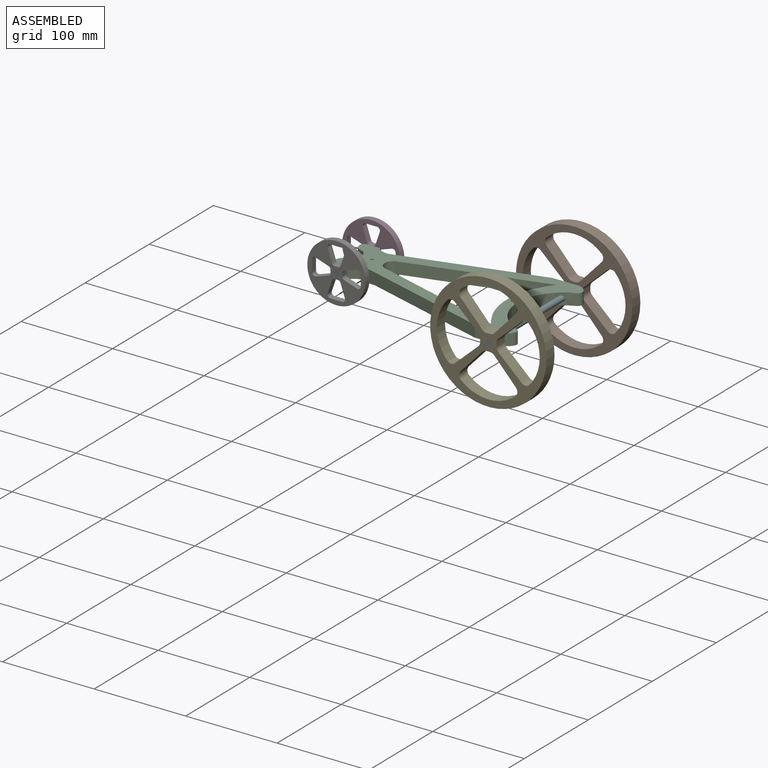
[diagram: assembled view]
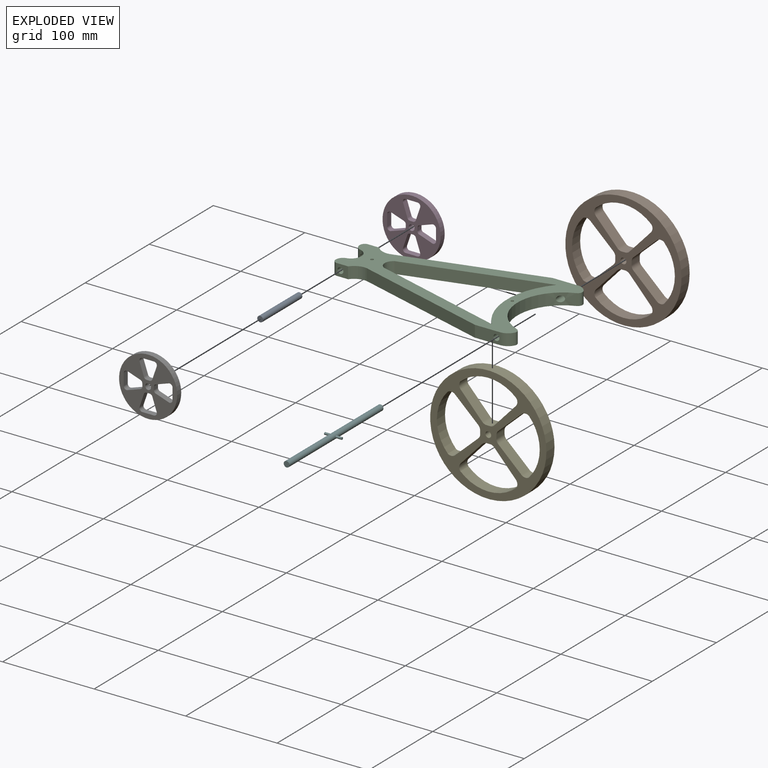
[diagram: exploded view]
GUIDED TOUR — MATED ASSEMBLY (Onshape document 0003901e49d346f2a48e206e, AutoMate assembly 0003901e49d346f2a48e206e_aa6717b7bc48d7c4ba10673a_7dac10a45bcd15223f111ecb_default)

This assembly has 7 components, labeled P0..P6 below (a component is one placed occurrence of a part; the same part can appear more than once), held together by 6 mates. A mate is a constraint between two components; its type names the relative motion it leaves free:
  REVOLUTE — leaves rotation about the listed axis free (a hinge),
  SLIDER — leaves translation along the listed axis free.
Axis/direction vectors are unit vectors and 'through' points are millimeter coordinates, both in the assembly's world frame.

MATES
  1. SLIDER "Slider 1": P3 <-> P2, axis (0.000, -1.000, 0.000) through (-131.30, 20.03, 11.99) mm
  2. REVOLUTE "Revolute 2": P4 <-> P2, axis (0.000, 1.000, 0.000) through (64.64, -64.38, 12.16) mm
  3. REVOLUTE "Revolute 1": P6 <-> P2, axis (0.000, 1.000, 0.000) through (-131.30, -28.05, 11.99) mm
  4. REVOLUTE "Revolute 4": P4 <-> P5, axis (0.000, 1.000, 0.000) through (64.64, -77.08, 12.16) mm
  5. REVOLUTE "Revolute 5": P6 <-> P0, axis (0.000, -1.000, 0.000) through (-131.30, -34.40, 11.99) mm
  6. REVOLUTE "Revolute 3": P1 <-> P2, axis (0.000, -1.000, 0.000) through (64.64, 56.86, 12.16) mm

ASSEMBLY ORDER
  1. P2 — the base component [order verified]
  2. P0 [order verified]
  3. P4 [order verified]
  4. P5 [order verified]
  5. P1 [order verified]
  6. P3 [order verified]
  7. P6 [order verified]
Order-tag legend:
  [order verified] — this step's position reverses a verified removal order: the component was checked to insert without passing through the ones already placed.

Of the 7 components, 2 carry the full construction recipe — the FeatureScript program that regenerates the part's solid from scratch; the rest are supplied as boundary geometry only.
Each toured component is shown spotlighted twice — in the assembled view, then in the exploded view, where a leader line traces a displaced component back to its assembled socket (saturated green if recipe-attached, orange if geometry-only; every other component desaturated gray) — followed by its recipe or geometry summary and the mates that hold it.
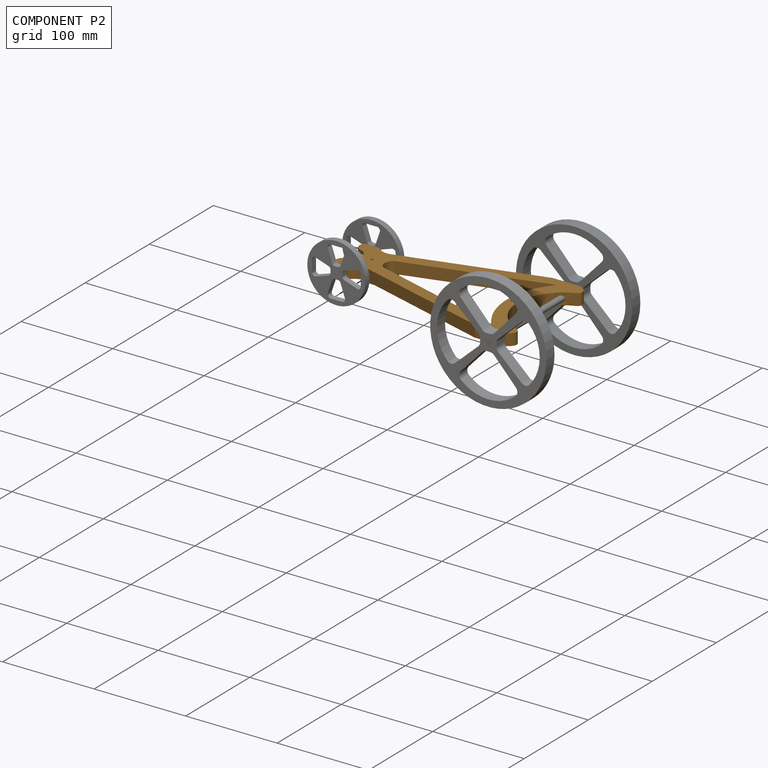
[diagram: component P2 — assembled]
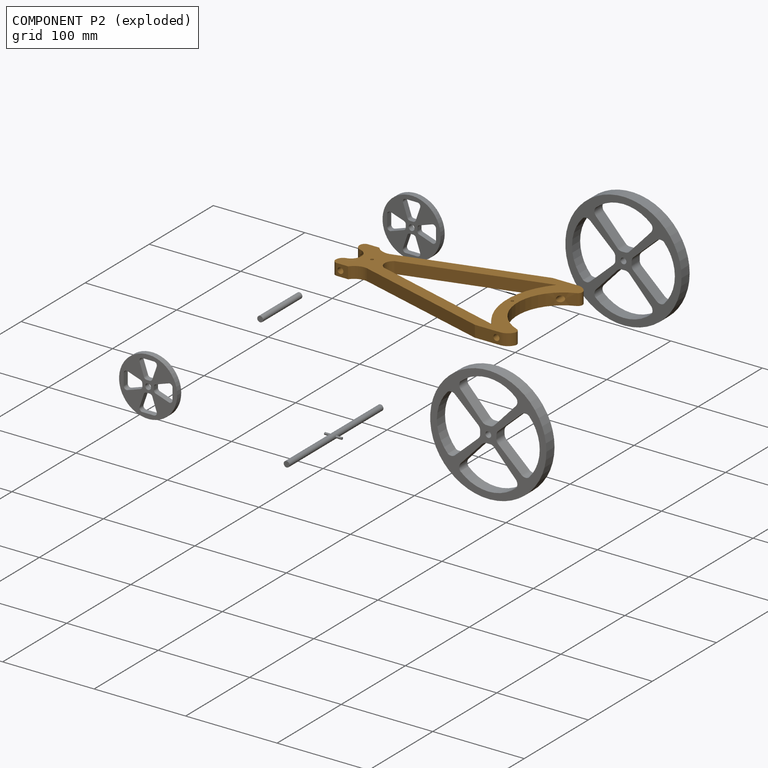
[diagram: component P2 — exploded]
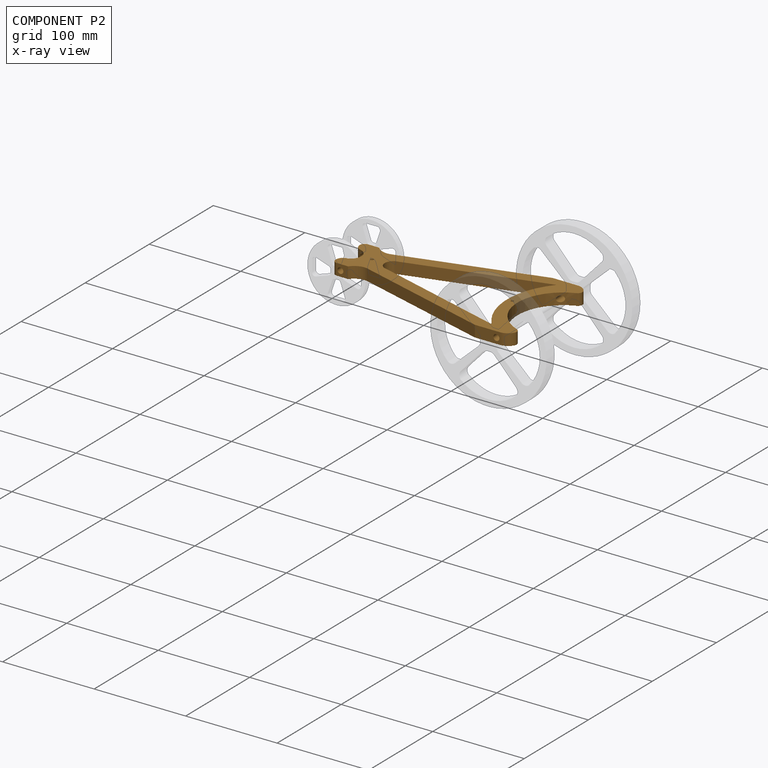
[diagram: component P2 — x-ray view]
COMPONENT P2 — geometry summary (no construction recipe available for this part):
  bounding box: 220.6 x 121.2 x 12.7 mm
  B-rep topology: 1 solid, 32 faces, 192 edges
  volume: 93870 mm^3 (28% of its bounding box)
  symmetry: 2-fold rotationally symmetric about the x axis; mirror-symmetric across its y mid-plane, z mid-plane
Held by: SLIDER mate "Slider 1" to P3; REVOLUTE mate "Revolute 2" to P4; REVOLUTE mate "Revolute 1" to P6; REVOLUTE mate "Revolute 3" to P1.
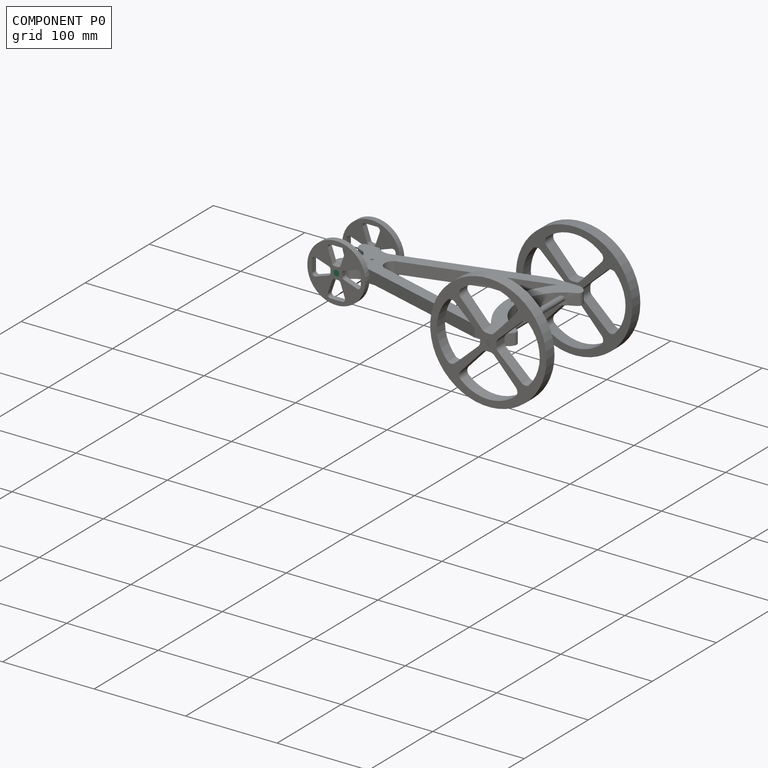
[diagram: component P0 — assembled]
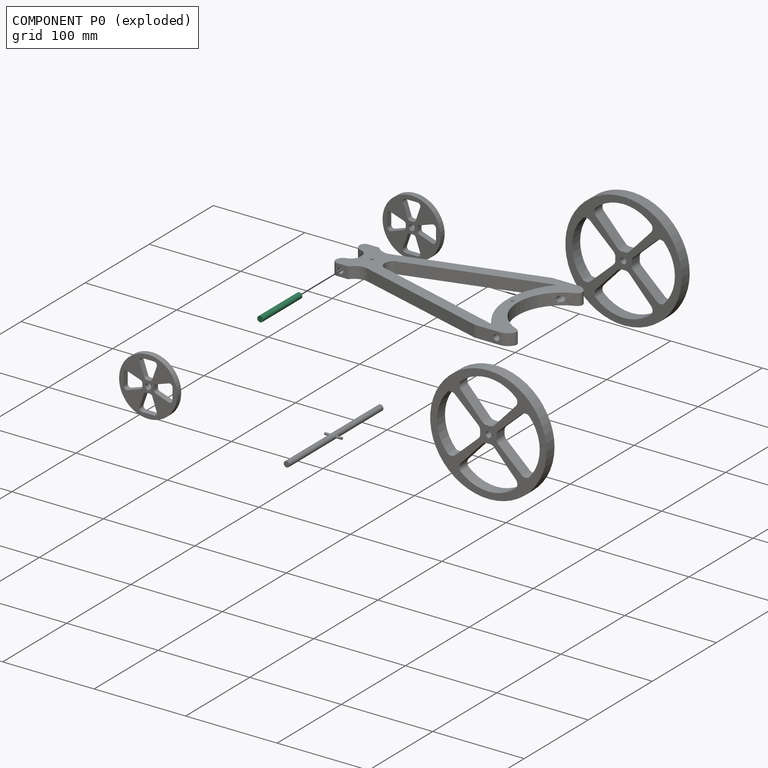
[diagram: component P0 — exploded]
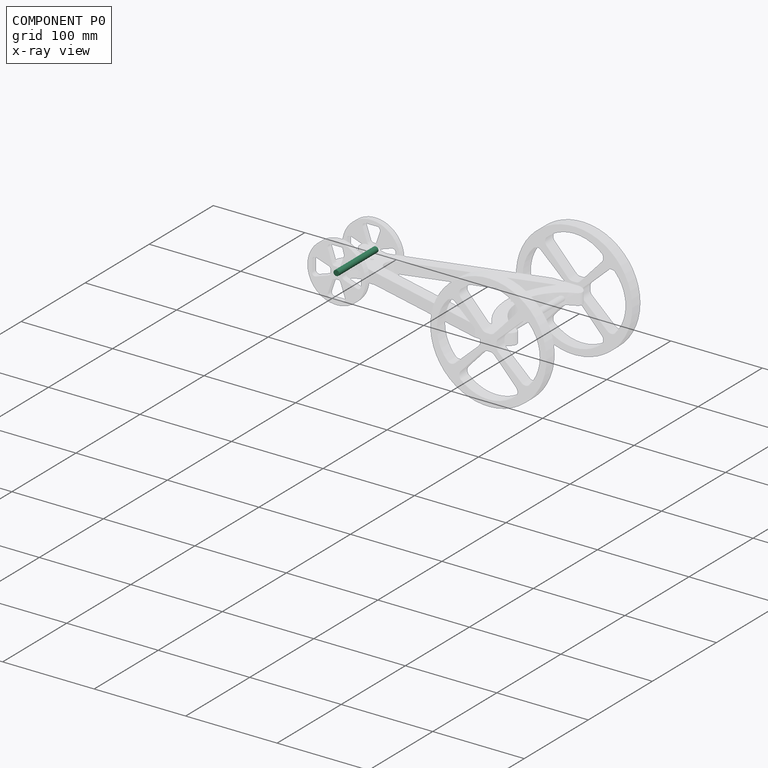
[diagram: component P0 — x-ray view]
COMPONENT P0 — recipe-attached (CADFS 00808913, mesh-verified: the recipe's output STEP matches this component's geometry to below the mesh-comparison resolution (tessellation chordal tolerance ~0.0929 mm)).
Held by: REVOLUTE mate "Revolute 5" to P6.
Construction recipe (FeatureScript — the CAD program that rebuilds this solid; sketch coordinates are in the units given by the * unit suffixes, e.g. mm):

FeatureScript 1511;
import(path : "onshape/std/geometry.fs", version : "1511.0");
import(path : "onshape/std/common.fs", version : "1511.0");
const mm = millimeter;
const VERTEX = EntityType.VERTEX;
const EDGE = EntityType.EDGE;
const FACE = EntityType.FACE;
const BODY = EntityType.BODY;
function v(x, y){return vector(x, y);}
function OD(order){return orderDisambiguation(order);}
function OSD(set){return originalSetDisambiguation(set);}
function TD(topology){return topologyDisambiguation(topology);}
function TDD(query){return trueDependencyDisambiguation(query);}
function sQuery(a, b, c) {return sketchEntityQuery(a, b, c);}

annotation { "Feature Type Name" : "Feature", "Feature Type Description" : "" }
export const myFeature = defineFeature(function(context is Context, id is Id, definition is map)
    precondition{}
    {
        {
            var Q0;
            Q0=qCreatedBy(makeId("Front.planeOp"),FACE);
            var sketch = newSketch(context, id + "F0", { "sketchPlane" : qUnion([Q0])});
            skCircle(sketch, "E0", {"center": v(0, 0) * mm, "radius": 3.18 * mm});
            skSolve(sketch);
        }
        {
            var Q0;
            Q0 = qSketchRegion(id + "F0", true);
            extrude(context, id + "F1", {"entities" : qUnion([Q0]), "depth" : 61.26 * mm, "offsetDistance" : 25.4 * mm});
        }
    });
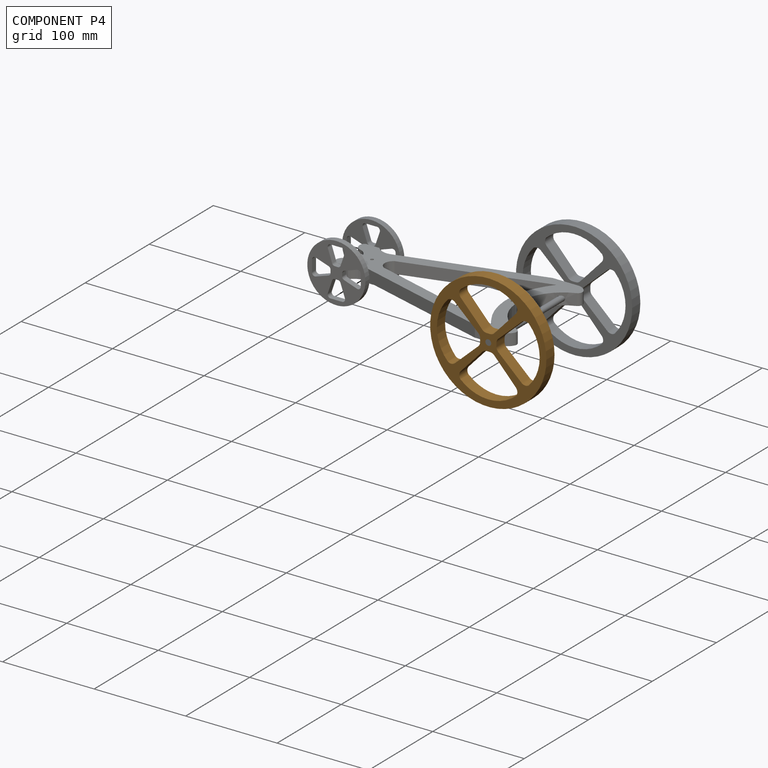
[diagram: component P4 — assembled]
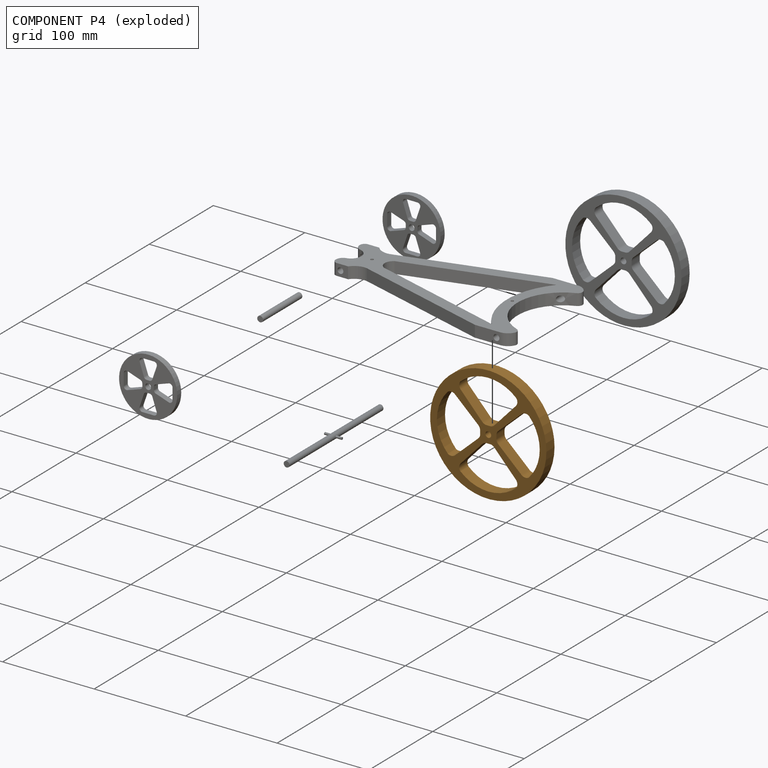
[diagram: component P4 — exploded]
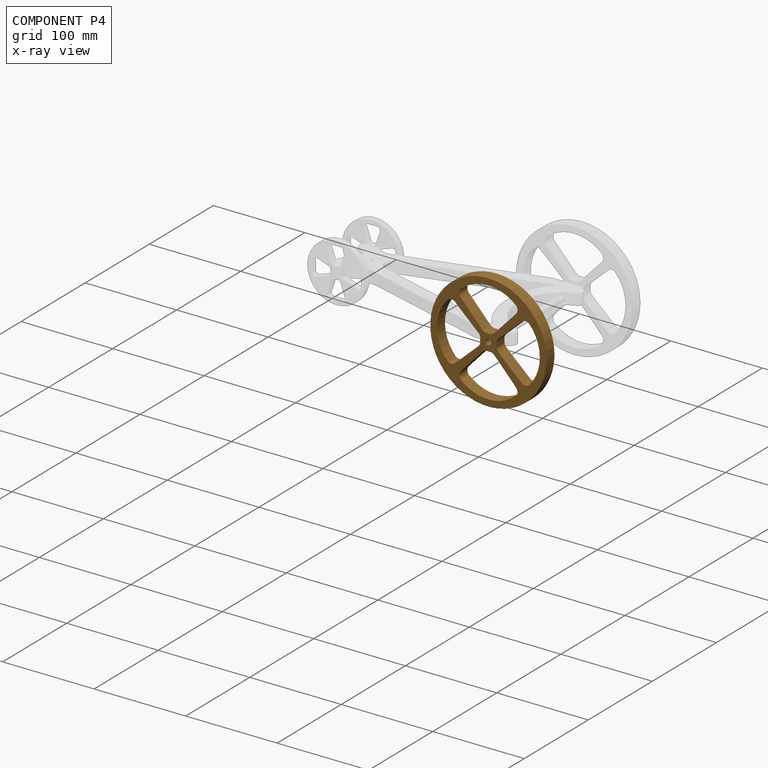
[diagram: component P4 — x-ray view]
COMPONENT P4 — geometry summary (no construction recipe available for this part):
  bounding box: 127.0 x 127.0 x 12.7 mm
  B-rep topology: 1 solid, 36 faces, 204 edges
  volume: 61395 mm^3 (30% of its bounding box)
  symmetry: 2-fold rotationally symmetric about the x axis; 2-fold rotationally symmetric about the y axis; 4-fold rotationally symmetric about the z axis; mirror-symmetric across its x mid-plane, y mid-plane, z mid-plane
Held by: REVOLUTE mate "Revolute 2" to P2; REVOLUTE mate "Revolute 4" to P5.
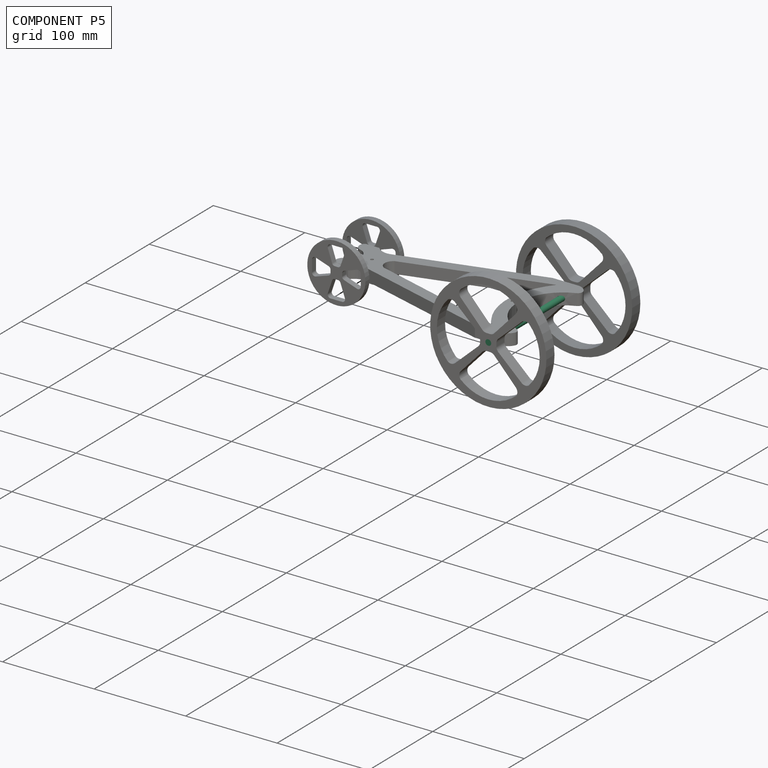
[diagram: component P5 — assembled]
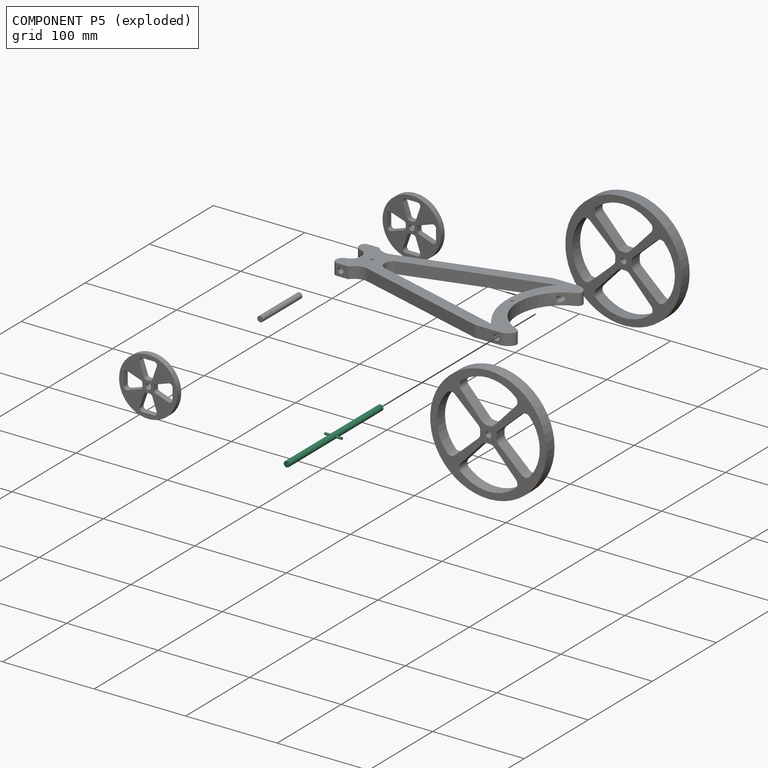
[diagram: component P5 — exploded]
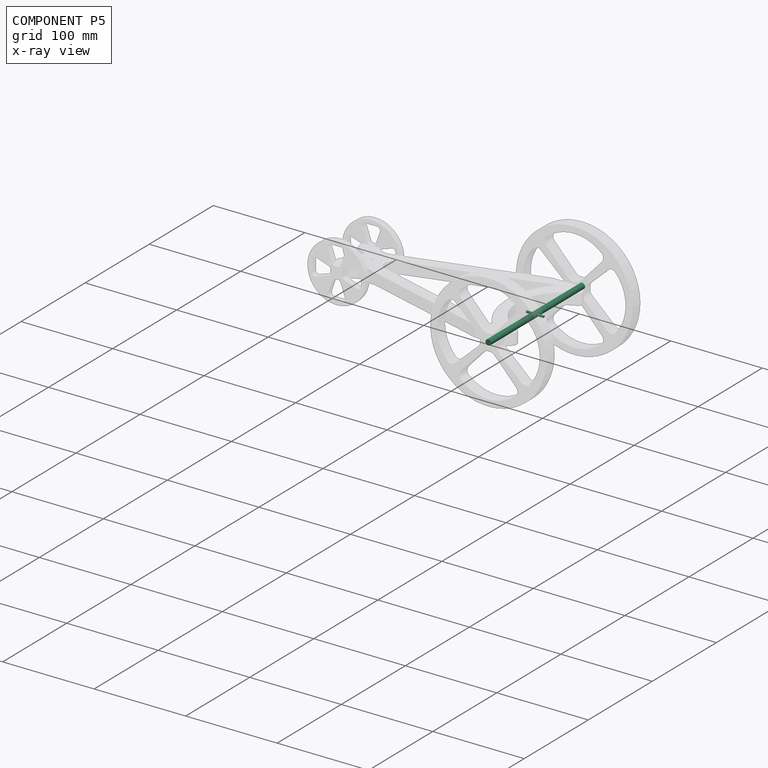
[diagram: component P5 — x-ray view]
COMPONENT P5 — recipe-attached (CADFS 00808910, mesh-verified: the recipe's output STEP matches this component's geometry to below the mesh-comparison resolution (tessellation chordal tolerance ~0.222 mm)).
Held by: REVOLUTE mate "Revolute 4" to P4.
Construction recipe (FeatureScript — the CAD program that rebuilds this solid; sketch coordinates are in the units given by the * unit suffixes, e.g. mm):

FeatureScript 1511;
import(path : "onshape/std/geometry.fs", version : "1511.0");
import(path : "onshape/std/common.fs", version : "1511.0");
const mm = millimeter;
const VERTEX = EntityType.VERTEX;
const EDGE = EntityType.EDGE;
const FACE = EntityType.FACE;
const BODY = EntityType.BODY;
function v(x, y){return vector(x, y);}
function OD(order){return orderDisambiguation(order);}
function OSD(set){return originalSetDisambiguation(set);}
function TD(topology){return topologyDisambiguation(topology);}
function TDD(query){return trueDependencyDisambiguation(query);}
function sQuery(a, b, c) {return sketchEntityQuery(a, b, c);}

annotation { "Feature Type Name" : "Feature", "Feature Type Description" : "" }
export const myFeature = defineFeature(function(context is Context, id is Id, definition is map)
    precondition{}
    {
        {
            var Q0;
            Q0=qCreatedBy(makeId("Front.planeOp"),FACE);
            var sketch = newSketch(context, id + "F0", { "sketchPlane" : qUnion([Q0])});
            skCircle(sketch, "E0", {"center": v(0, 0) * mm, "radius": 3.18 * mm});
            skSolve(sketch);
        }
        {
            var Q0;
            Q0 = qSketchRegion(id + "F0", true);
            extrude(context, id + "F1", {"entities" : qUnion([Q0]), "depth" : 146.63 * mm, "offsetDistance" : 25.4 * mm});
        }
        {
            var Q0;
            Q0=qCreatedBy(makeId("Right.planeOp"),FACE);
            var sketch = newSketch(context, id + "F2", { "sketchPlane" : qUnion([Q0])});
            skCircle(sketch, "E1", {"center": v(-73.4, 0) * mm, "radius": 1.27 * mm});
            skSolve(sketch);
        }
        {
            var Q0;
            Q0 = qSketchRegion(id + "F2", true);
            extrude(context, id + "F3", {"entities" : qUnion([Q0]), "operationType" : NewBodyOperationType.ADD, "endBound" : BoundingType.SYMMETRIC, "depth" : 19.05 * mm, "offsetDistance" : 25.4 * mm});
        }
    });
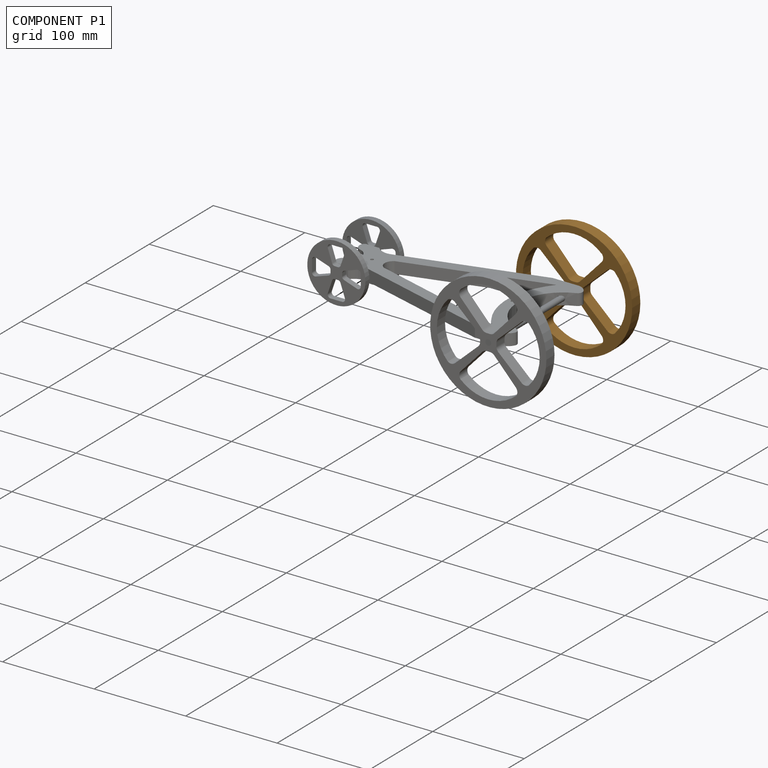
[diagram: component P1 — assembled]
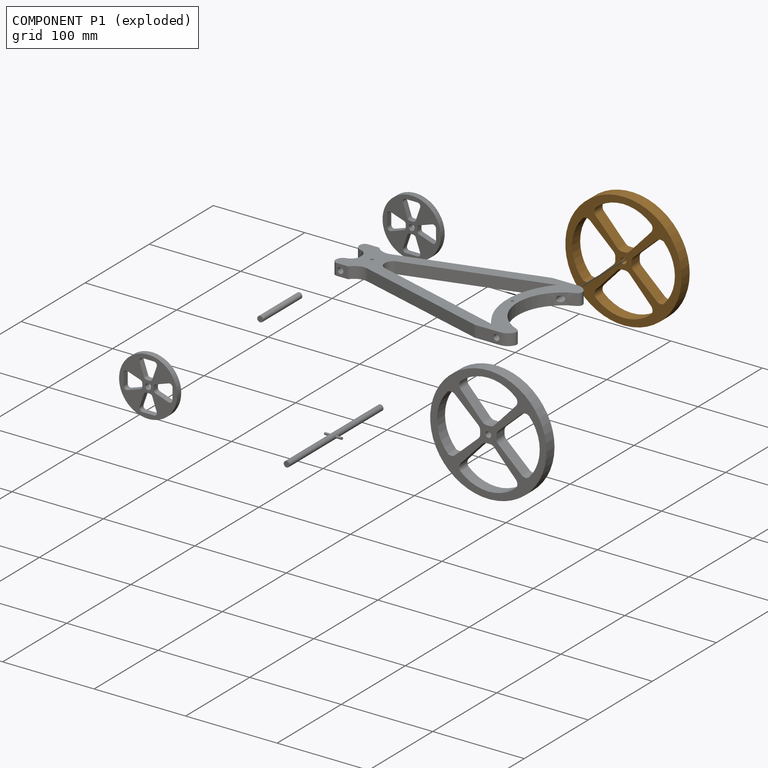
[diagram: component P1 — exploded]
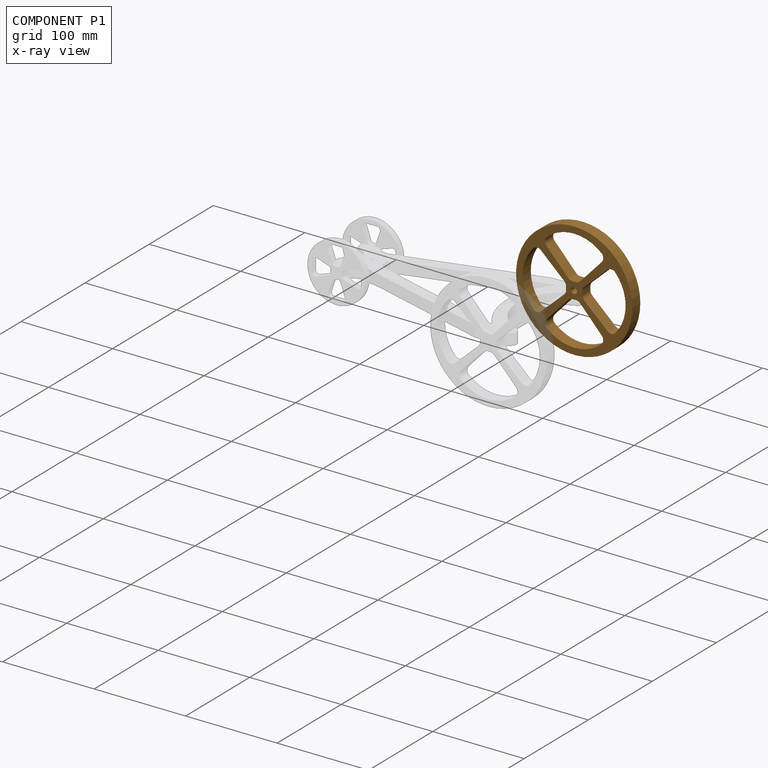
[diagram: component P1 — x-ray view]
COMPONENT P1 — geometry summary (no construction recipe available for this part):
  bounding box: 127.0 x 127.0 x 12.7 mm
  B-rep topology: 1 solid, 36 faces, 204 edges
  volume: 61395 mm^3 (30% of its bounding box)
  symmetry: 2-fold rotationally symmetric about the x axis; 2-fold rotationally symmetric about the y axis; 4-fold rotationally symmetric about the z axis; mirror-symmetric across its x mid-plane, y mid-plane, z mid-plane
Held by: REVOLUTE mate "Revolute 3" to P2.
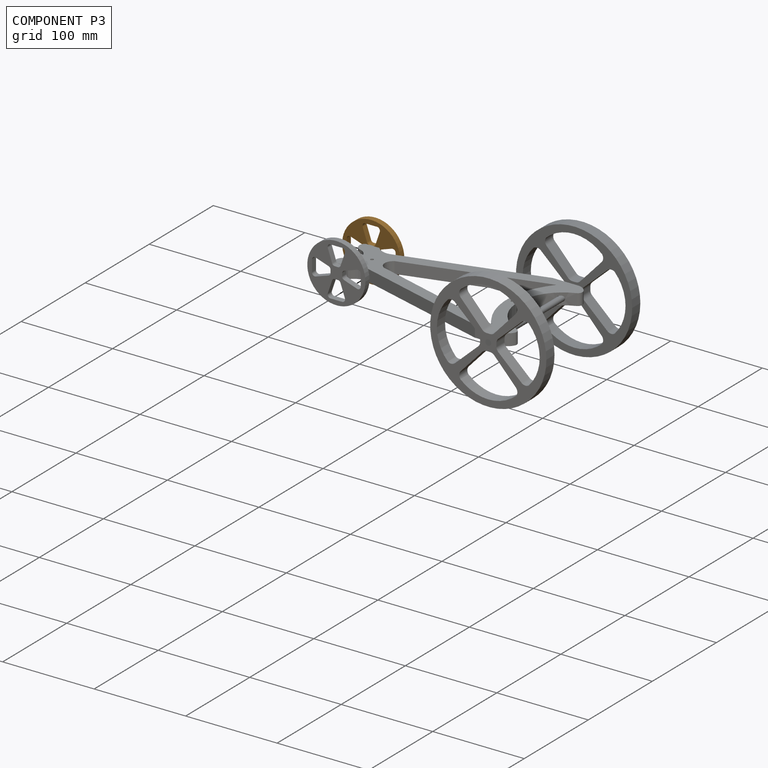
[diagram: component P3 — assembled]
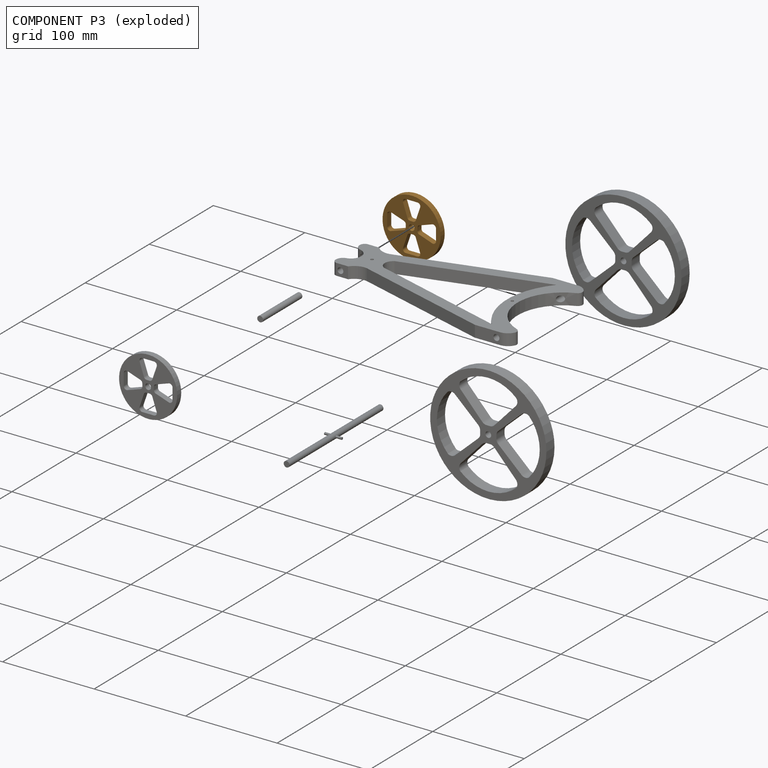
[diagram: component P3 — exploded]
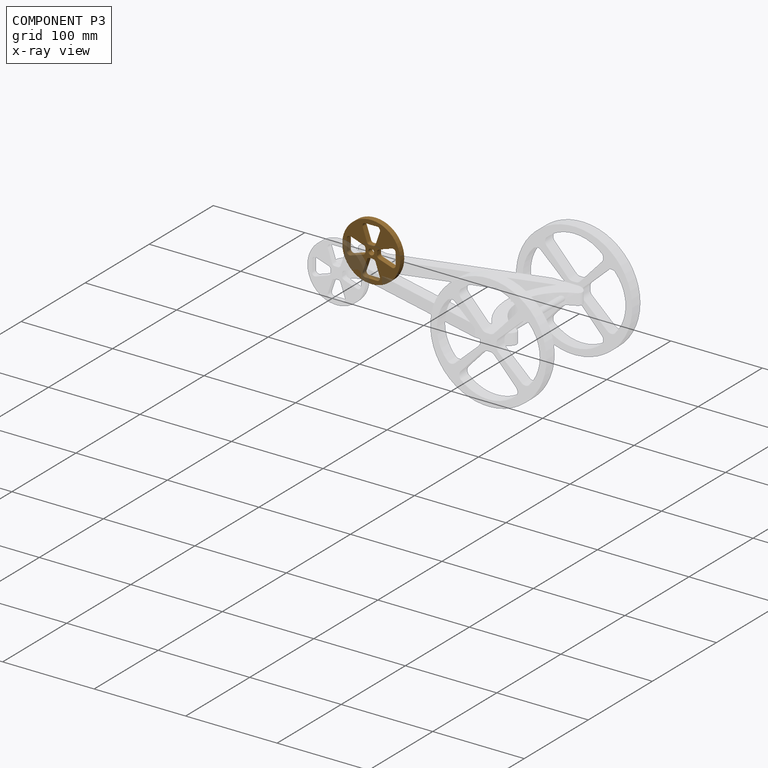
[diagram: component P3 — x-ray view]
COMPONENT P3 — geometry summary (no construction recipe available for this part):
  bounding box: 63.5 x 63.5 x 6.4 mm
  B-rep topology: 1 solid, 36 faces, 204 edges
  volume: 12627 mm^3 (49% of its bounding box)
  symmetry: 2-fold rotationally symmetric about the x axis; 2-fold rotationally symmetric about the y axis; 4-fold rotationally symmetric about the z axis; mirror-symmetric across its x mid-plane, y mid-plane, z mid-plane
Held by: SLIDER mate "Slider 1" to P2.
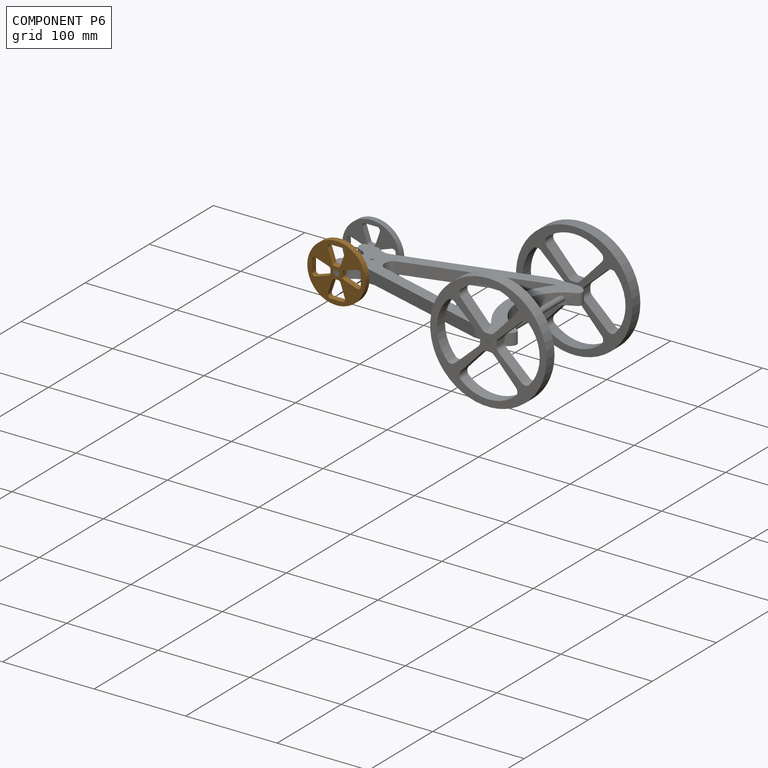
[diagram: component P6 — assembled]
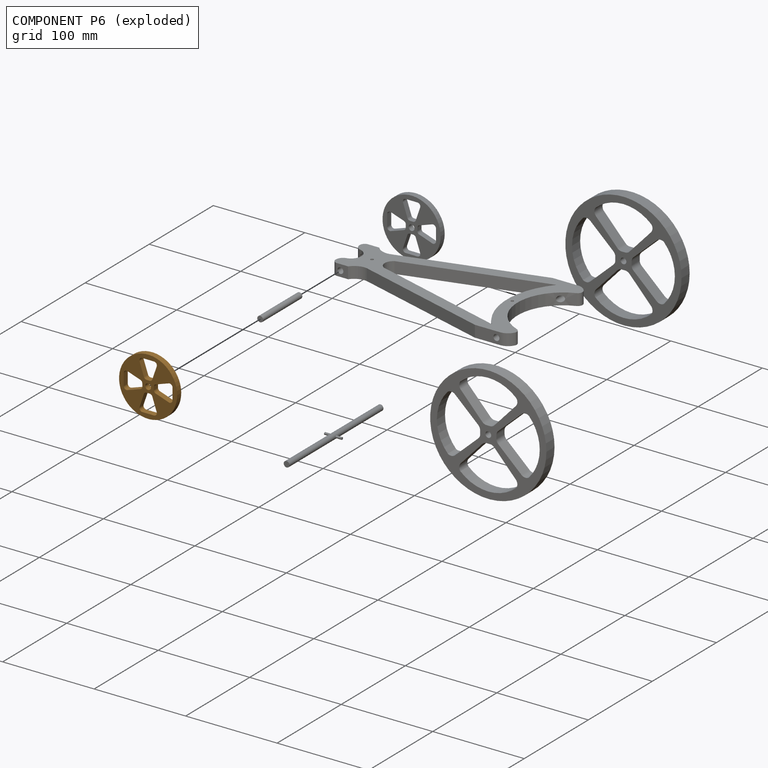
[diagram: component P6 — exploded]
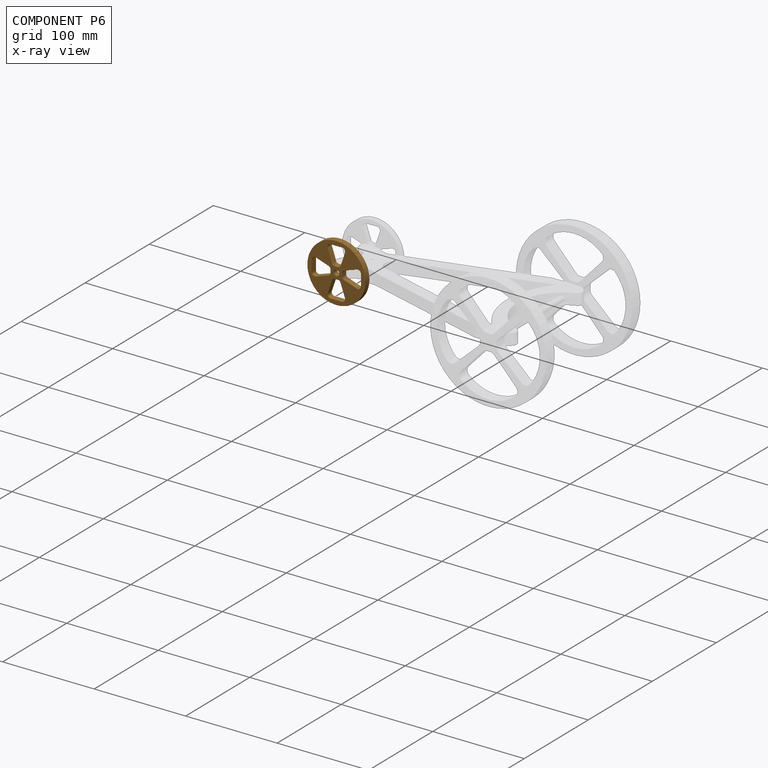
[diagram: component P6 — x-ray view]
COMPONENT P6 — geometry summary (no construction recipe available for this part):
  bounding box: 63.5 x 63.5 x 6.4 mm
  B-rep topology: 1 solid, 36 faces, 204 edges
  volume: 12627 mm^3 (49% of its bounding box)
  symmetry: 2-fold rotationally symmetric about the x axis; 2-fold rotationally symmetric about the y axis; 4-fold rotationally symmetric about the z axis; mirror-symmetric across its x mid-plane, y mid-plane, z mid-plane
Held by: REVOLUTE mate "Revolute 1" to P2; REVOLUTE mate "Revolute 5" to P0.
PROVENANCE & LICENSES
Assembly (occurrences, transforms, mates, per-part STEP geometry): AutoMate dataset, Zenodo record 7776208, CC0.
Construction recipes: CADFS (HuggingFace VladPyatov/CADFS, CC-BY-4.0, layered over the ABC dataset), FeatureScript reconstruction programs keyed by ABC model id.
Join: ABC meta listings map ABC model id -> Onshape documentId; within a shared document, parts are matched by geometric signature (bounding-box dims + volume at 0.1% relative tolerance, exact B-rep face/solid counts).
Verification: 2 of this assembly's 7 components carry a recipe attachment, and every attachment is mesh-verified: the CADFS STEP and the AutoMate member STEP were compared as meshes in their shared local frame (symmetric sampled-point-to-mesh distance); worst across the 2 attachments: below the mesh-comparison resolution (tessellation chordal tolerance ~0.222 mm) on a 148 mm part.
Renders: orthographic iso camera (az 35 / el 25); the floor grid conveys scale (grid pitch printed in each image; no ruler). In the exploded view each component is displaced by its stored offset vector: the offsets alone carry the explosion direction (mate normal/axis signs are not orientation cues and do not encode it), and separation distances are assigned per mate-chain, not proportionally to assembly-order depth.
